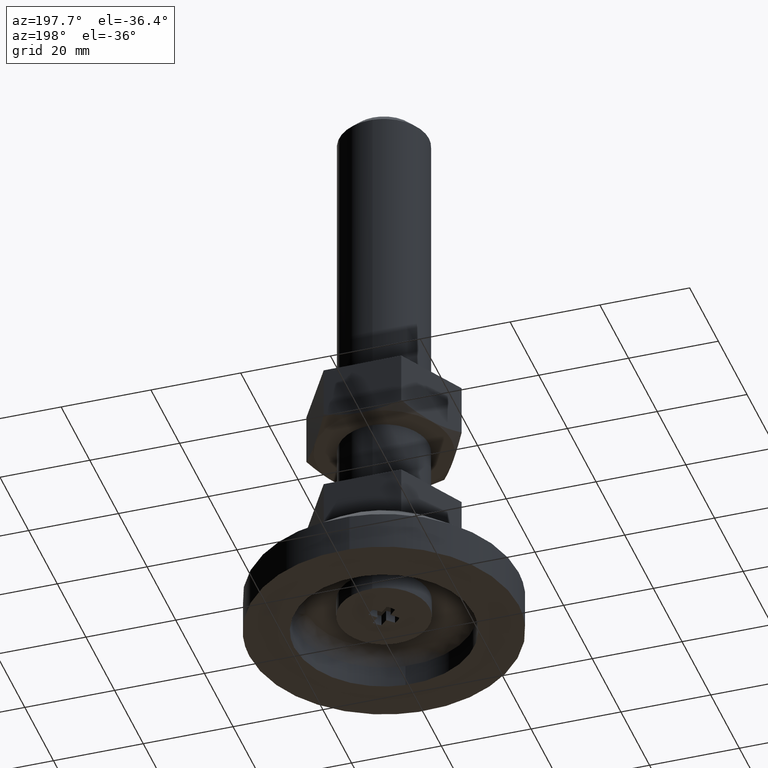
[diagram: clean part render]
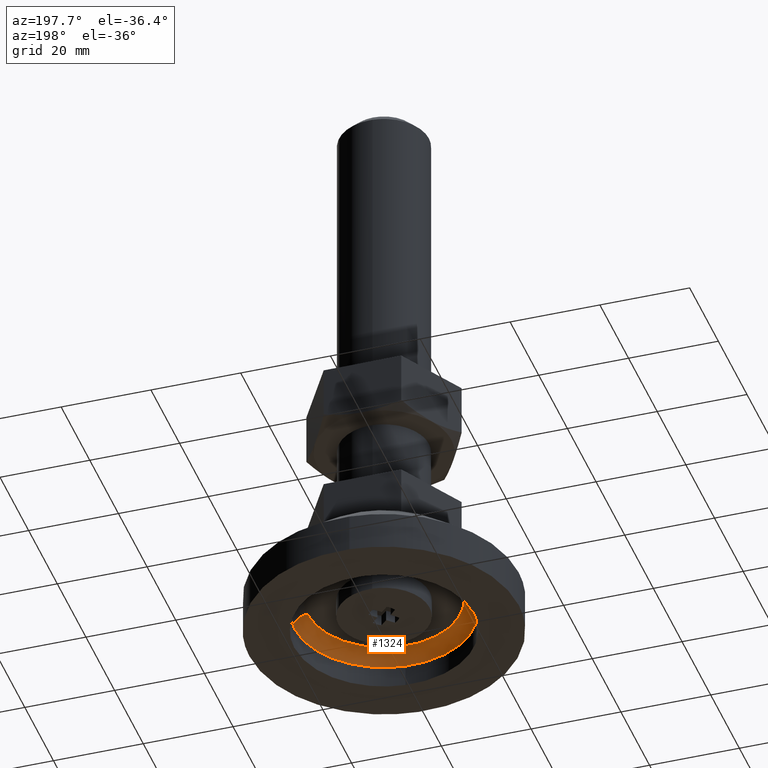
[diagram: same view with one face highlighted and labeled with its STEP entity id]
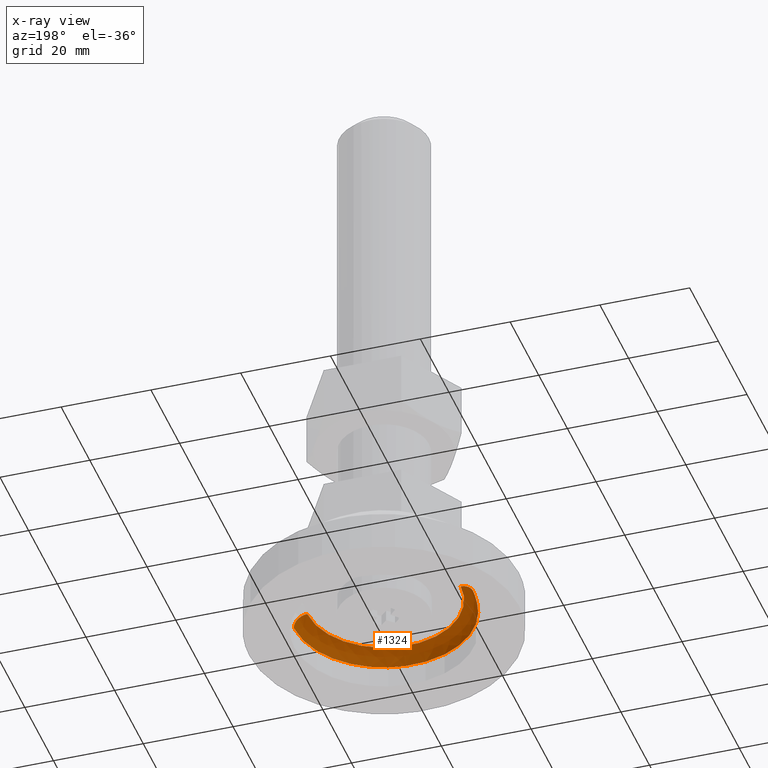
[diagram: x-ray of the same camera — body ghosted, the highlighted face saturated]
A machine part, auxiliary view. The second image highlights one B-rep face of the part: STEP entity #1324.
The next image is the same camera in x-ray: the body ghosted, the highlighted face saturated — about 0% of this face is hidden behind the body in this view.
In plain terms, the highlighted face is a freeform B-spline surface patch.
Its self-contained STEP definition (entity closure, byte-faithful):
#1041=CARTESIAN_POINT('',(16.998657755079101,0.213622678515942,8.0));
#1042=VERTEX_POINT('',#1041);
#1070=CARTESIAN_POINT('',(17.0,0.0,8.0));
#1071=VERTEX_POINT('',#1070);
#1072=CARTESIAN_POINT('',(16.998657755079101,0.213622678515942,8.0));
#1073=CARTESIAN_POINT('',(17.000000001809969,0.106815556111627,8.0));
#1074=CARTESIAN_POINT('',(17.0,0.0,8.0));
#1082=(BOUNDED_CURVE()B_SPLINE_CURVE(2,(#1072,#1073,#1074),.UNSPECIFIED.,.F.,.U.)B_SPLINE_CURVE_WITH_KNOTS((3,3),(0.497784295917037,0.500000000000000),.UNSPECIFIED.)CURVE()GEOMETRIC_REPRESENTATION_ITEM()RATIONAL_B_SPLINE_CURVE((0.994854295633214,0.997404141196811,1.0))REPRESENTATION_ITEM(''));
#1083=EDGE_CURVE('',#1042,#1071,#1082,.T.);
#1085=CARTESIAN_POINT('',(-16.998657755079108,-0.213622678515943,8.0));
#1086=VERTEX_POINT('',#1085);
#1087=CARTESIAN_POINT('',(17.0,0.0,8.0));
#1088=CARTESIAN_POINT('',(17.000433802700812,-1.454540345665065,7.999999999999954));
#1089=CARTESIAN_POINT('',(16.704787976879778,-3.739936195050904,8.000000000000092));
#1090=CARTESIAN_POINT('',(15.714438940062120,-6.630770227859853,7.999999999999946));
#1091=CARTESIAN_POINT('',(14.738709802279489,-8.548855617087124,8.000000000000082));
#1092=CARTESIAN_POINT('',(13.548619567515869,-10.339106036966619,7.999999999999974));
#1093=CARTESIAN_POINT('',(12.192251853533341,-11.920593204515370,8.000000000000041));
#1094=CARTESIAN_POINT('',(10.456005454695100,-13.466368808102880,8.000000000000021));
#1095=CARTESIAN_POINT('',(8.703416645846835,-14.655161690119501,7.999999999999979));
#1096=CARTESIAN_POINT('',(6.570547197792768,-15.740622901797490,7.999999999999943));
#1097=CARTESIAN_POINT('',(3.907262317779088,-16.653609955725820,8.000000000000073));
#1098=CARTESIAN_POINT('',(0.767775031115977,-17.088560292183260,7.999999999999893));
#1099=CARTESIAN_POINT('',(-2.078074063213184,-16.932198150810649,8.000000000000055));
#1100=CARTESIAN_POINT('',(-4.662726286244628,-16.412457766051691,7.999999999999965));
#1101=CARTESIAN_POINT('',(-6.887473938169469,-15.612659337894540,8.000000000000014));
#1102=CARTESIAN_POINT('',(-9.391312868129873,-14.261561150946140,7.999999999999994));
#1103=CARTESIAN_POINT('',(-11.486322037272179,-12.646368301555670,8.000000000000002));
#1104=CARTESIAN_POINT('',(-13.223946393410481,-10.754054629638160,8.0));
#1105=CARTESIAN_POINT('',(-14.730411848742660,-8.633368916719235,8.0));
#1106=CARTESIAN_POINT('',(-15.994652524325680,-6.073419308369424,8.0));
#1107=CARTESIAN_POINT('',(-16.808598847532799,-3.051184386402381,8.0));
#1108=CARTESIAN_POINT('',(-16.987388121107330,-1.113956098429762,8.0));
#1109=CARTESIAN_POINT('',(-16.998657755079108,-0.213622678515943,8.0));
#1110=B_SPLINE_CURVE_WITH_KNOTS('',3,(#1087,#1088,#1089,#1090,#1091,#1092,#1093,#1094,#1095,#1096,#1097,#1098,#1099,#1100,#1101,#1102,#1103,#1104,#1105,#1106,#1107,#1108,#1109),.UNSPECIFIED.,.F.,.U.,(4,1,1,1,1,1,1,1,1,1,1,1,1,1,1,1,1,1,1,1,4),(0.000000240942597,4.363471491069319,6.856928973136711,9.142608147060400,10.804932631720160,13.298386287469210,15.376261057657031,17.765845973364438,19.635942944683539,22.544977912624521,26.181239680185129,29.090200909092829,31.064155975180888,34.077058267773623,36.154946726747717,39.583464591962368,41.973030948173040,43.843134258927762,47.375541925796057,50.492310353925582,53.193529591861683),.UNSPECIFIED.);
#1111=EDGE_CURVE('',#1071,#1086,#1110,.T.);
#1165=CARTESIAN_POINT('',(-19.998420884075149,-0.251320797760807,5.000000000582527));
#1166=VERTEX_POINT('',#1165);
#1167=CARTESIAN_POINT('',(-16.998657755079101,-0.213622678515943,8.0));
#1168=CARTESIAN_POINT('',(-19.998420883490411,-0.251320797933337,7.999999996379780));
#1169=CARTESIAN_POINT('',(-19.998420884075141,-0.251320797760807,5.000000000582527));
#1177=(BOUNDED_CURVE()B_SPLINE_CURVE(2,(#1167,#1168,#1169),.UNSPECIFIED.,.F.,.U.)B_SPLINE_CURVE_WITH_KNOTS((3,3),(-1.725134642044308,-0.274865356917312),.UNSPECIFIED.)CURVE()GEOMETRIC_REPRESENTATION_ITEM()RATIONAL_B_SPLINE_CURVE((0.883342149211523,0.624617224383872,0.883342149582012))REPRESENTATION_ITEM(''));
#1178=EDGE_CURVE('',#1086,#1166,#1177,.T.);
#1210=CARTESIAN_POINT('',(19.998420884075149,0.251320797760808,5.000000000582528));
#1211=VERTEX_POINT('',#1210);
#1227=CARTESIAN_POINT('',(16.998657755079101,0.213622678515942,8.0));
#1228=CARTESIAN_POINT('',(19.998420883490404,0.251320797933337,7.999999996379788));
#1229=CARTESIAN_POINT('',(19.998420884075141,0.251320797760808,5.000000000582528));
#1237=(BOUNDED_CURVE()B_SPLINE_CURVE(2,(#1227,#1228,#1229),.UNSPECIFIED.,.F.,.U.)B_SPLINE_CURVE_WITH_KNOTS((3,3),(-1.725134642044311,-0.274865356917312),.UNSPECIFIED.)CURVE()GEOMETRIC_REPRESENTATION_ITEM()RATIONAL_B_SPLINE_CURVE((0.883342149211524,0.624617224383872,0.883342149582012))REPRESENTATION_ITEM(''));
#1238=EDGE_CURVE('',#1042,#1211,#1237,.T.);
#1244=CARTESIAN_POINT('',(16.784163988321335,0.680396644389583,7.992738096477131));
#1245=CARTESIAN_POINT('',(16.787096264881534,0.447065772676141,7.992738096477129));
#1246=CARTESIAN_POINT('',(17.001064154956079,-16.579061635441072,7.992738096477130));
#1247=CARTESIAN_POINT('',(0.211001259757513,-16.790062895198570,7.992738096477130));
#1248=CARTESIAN_POINT('',(-16.579061635441057,-17.001064154956079,7.992738096477130));
#1249=CARTESIAN_POINT('',(-16.793029525512345,0.025063252900857,7.992738096477130));
#1250=CARTESIAN_POINT('',(-16.795961802069346,0.258394124360051,7.992738096477130));
#1251=CARTESIAN_POINT('',(20.223906212775489,0.819836956621532,8.232611430909151));
#1252=CARTESIAN_POINT('',(20.227439429335142,0.538687316439200,8.232611430909151));
#1253=CARTESIAN_POINT('',(20.485257843432137,-19.976770236771166,8.232611430909152));
#1254=CARTESIAN_POINT('',(0.254243803330488,-20.231014040101652,8.232611430909151));
#1255=CARTESIAN_POINT('',(-19.976770236771166,-20.485257843432137,8.232611430909152));
#1256=CARTESIAN_POINT('',(-20.234588650864243,0.030199709464630,8.232611430909152));
#1257=CARTESIAN_POINT('',(-20.238121867420038,0.311349349340608,8.232611430909151));
#1258=CARTESIAN_POINT('',(19.984135989566543,0.810117148389831,4.791388588279428));
#1259=CARTESIAN_POINT('',(19.987627317080904,0.532300757050349,4.791388588279428));
#1260=CARTESIAN_POINT('',(20.242389092265274,-19.739930003817619,4.791388588279428));
#1261=CARTESIAN_POINT('',(0.251229544223830,-19.991159548041452,4.791388588279428));
#1262=CARTESIAN_POINT('',(-19.739930003817619,-20.242389092265274,4.791388588279428));
#1263=CARTESIAN_POINT('',(-19.994691778998103,0.029841668292811,4.791388588279429));
#1264=CARTESIAN_POINT('',(-19.998183106508669,0.307658059329572,4.791388588279428));
#1272=(BOUNDED_SURFACE()B_SPLINE_SURFACE(2,2,((#1244,#1251,#1258),(#1245,#1252,#1259),(#1246,#1253,#1260),(#1247,#1254,#1261),(#1248,#1255,#1262),(#1249,#1256,#1263),(#1250,#1257,#1264)),.UNSPECIFIED.,.F.,.F.,.U.)B_SPLINE_SURFACE_WITH_KNOTS((3,1,2,1,3),(3,3),(0.0,0.662501061917826,33.787554126308812,66.912607190699788,67.575108251882952),(0.0,5.468189979762521),.UNSPECIFIED.)GEOMETRIC_REPRESENTATION_ITEM()RATIONAL_B_SPLINE_SURFACE(((0.921146729415093,0.604479481459092,0.921146741247727),(0.915813262253045,0.600979527150465,0.915813274017167),(0.643806437242182,0.422481857576905,0.643806445512228),(0.910479795090997,0.597479572841838,0.910479806786608),(0.643806437242182,0.422481857576905,0.643806445512228),(0.915813262247130,0.600979527146584,0.915813274011253),(0.921146729403264,0.604479481451329,0.921146741235898)))REPRESENTATION_ITEM('')SURFACE());
#1273=ORIENTED_EDGE('',*,*,#1111,.F.);
#1274=ORIENTED_EDGE('',*,*,#1083,.F.);
#1275=ORIENTED_EDGE('',*,*,#1238,.T.);
#1276=CARTESIAN_POINT('',(20.0,0.0,5.0));
#1277=VERTEX_POINT('',#1276);
#1278=CARTESIAN_POINT('',(19.998420884075149,0.251320797760808,5.000000000582529));
#1279=CARTESIAN_POINT('',(20.0,0.125665359884679,5.000000000291264));
#1280=CARTESIAN_POINT('',(20.0,0.0,5.0));
#1288=(BOUNDED_CURVE()B_SPLINE_CURVE(2,(#1278,#1279,#1280),.UNSPECIFIED.,.F.,.U.)B_SPLINE_CURVE_WITH_KNOTS((3,3),(0.497784295920904,0.500000000000000),.UNSPECIFIED.)CURVE()GEOMETRIC_REPRESENTATION_ITEM()RATIONAL_B_SPLINE_CURVE((0.994854295642115,0.997404141201342,1.0))REPRESENTATION_ITEM(''));
#1289=EDGE_CURVE('',#1211,#1277,#1288,.T.);
#1290=ORIENTED_EDGE('',*,*,#1289,.T.);
#1291=CARTESIAN_POINT('',(1.569150114584243,-19.938349177323651,5.000000000271262));
#1292=VERTEX_POINT('',#1291);
#1293=CARTESIAN_POINT('',(20.0,0.0,5.0));
#1294=CARTESIAN_POINT('',(19.999999999999005,-18.487839410837001,5.000000000002204));
#1295=CARTESIAN_POINT('',(1.569150114584243,-19.938349177323651,5.000000000271262));
#1303=(BOUNDED_CURVE()B_SPLINE_CURVE(2,(#1293,#1294,#1295),.UNSPECIFIED.,.F.,.U.)B_SPLINE_CURVE_WITH_KNOTS((3,3),(0.500000000000000,0.736331574040342),.UNSPECIFIED.)CURVE()GEOMETRIC_REPRESENTATION_ITEM()RATIONAL_B_SPLINE_CURVE((1.0,0.723120338288297,0.969723926753268))REPRESENTATION_ITEM(''));
#1304=EDGE_CURVE('',#1277,#1292,#1303,.T.);
#1305=ORIENTED_EDGE('',*,*,#1304,.T.);
#1306=CARTESIAN_POINT('',(1.569150114584243,-19.938349177323651,5.000000000271262));
#1307=CARTESIAN_POINT('',(0.785786166380793,-19.999999999975110,5.000000000282658));
#1308=CARTESIAN_POINT('',(-1.917530E-012,-19.999999999975611,5.000000000294080));
#1309=CARTESIAN_POINT('',(-19.750238598054608,-19.999999999988276,5.000000000581195));
#1310=CARTESIAN_POINT('',(-19.998420884075149,-0.251320797760807,5.000000000582527));
#1318=(BOUNDED_CURVE()B_SPLINE_CURVE(2,(#1306,#1307,#1308,#1309,#1310),.UNSPECIFIED.,.F.,.U.)B_SPLINE_CURVE_WITH_KNOTS((3,2,3),(0.736331574040342,0.750000000000000,0.997784295920904),.UNSPECIFIED.)CURVE()GEOMETRIC_REPRESENTATION_ITEM()RATIONAL_B_SPLINE_CURVE((0.969723926753268,0.983986442898250,1.0,0.709702639985206,0.994854295642115))REPRESENTATION_ITEM(''));
#1319=EDGE_CURVE('',#1292,#1166,#1318,.T.);
#1320=ORIENTED_EDGE('',*,*,#1319,.T.);
#1321=ORIENTED_EDGE('',*,*,#1178,.F.);
#1322=EDGE_LOOP('',(#1273,#1274,#1275,#1290,#1305,#1320,#1321));
#1323=FACE_OUTER_BOUND('',#1322,.T.);
#1324=ADVANCED_FACE('',(#1323),#1272,.F.);